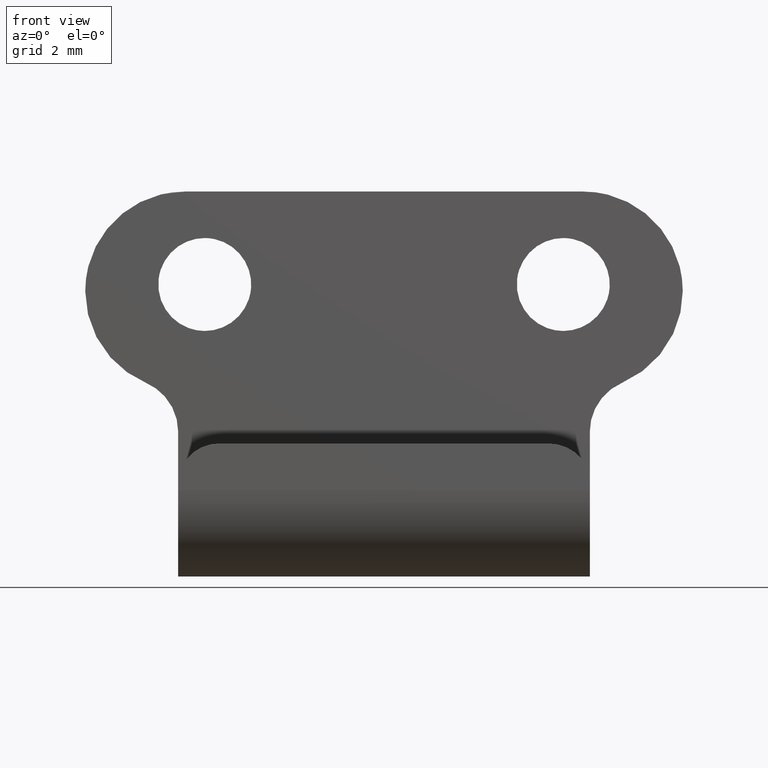
[diagram: clean part render]
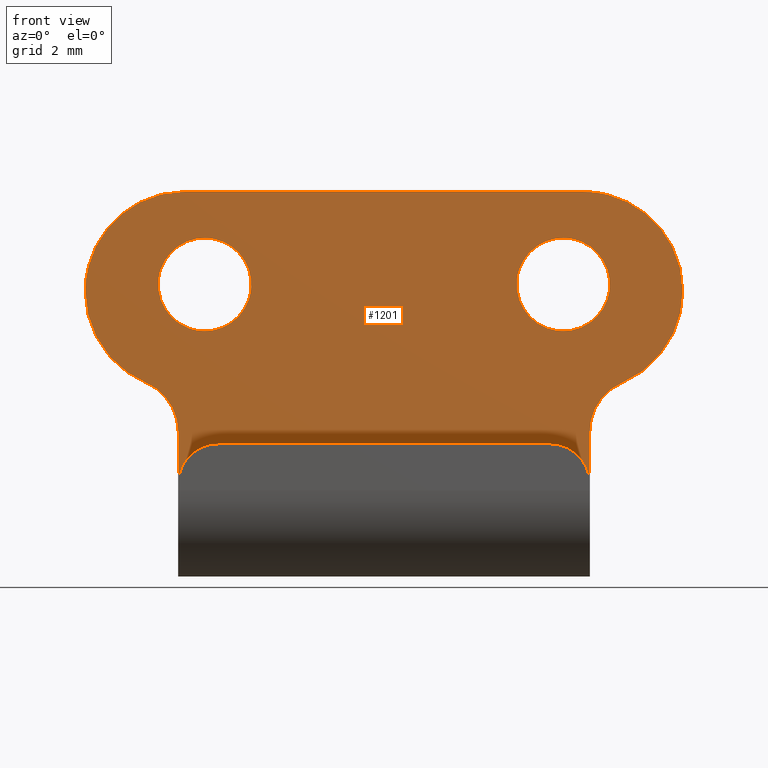
[diagram: same view with one face highlighted and labeled with its STEP entity id]
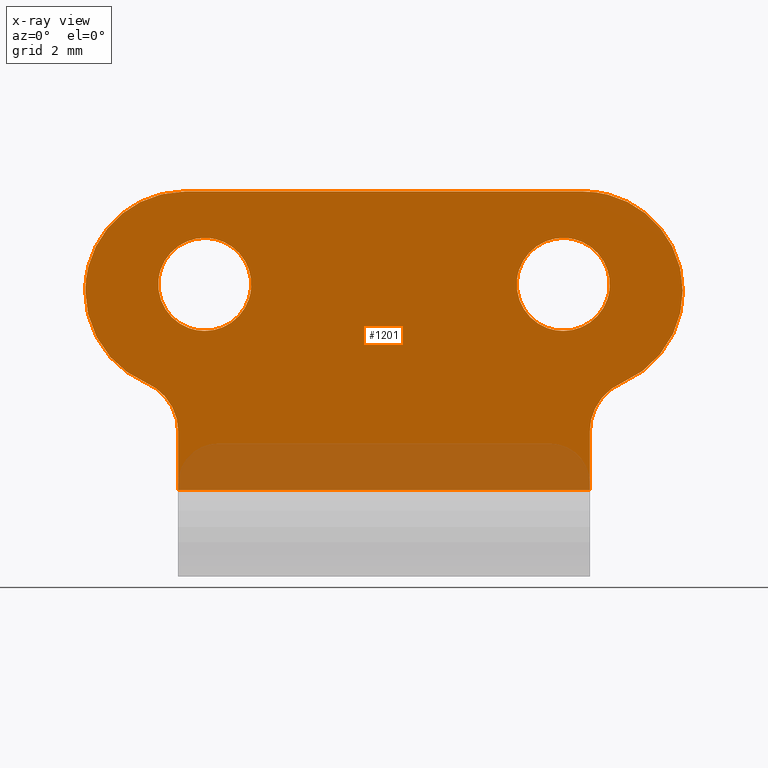
[diagram: x-ray of the same camera — body ghosted, the highlighted face saturated]
A machine part, front view. The second image highlights one B-rep face of the part: STEP entity #1201.
The next image is the same camera in x-ray: the body ghosted, the highlighted face saturated — about 13% of this face is hidden behind the body in this view.
In plain terms, the highlighted face is a freeform B-spline surface patch.
Its self-contained STEP definition (entity closure, byte-faithful):
#85=CARTESIAN_POINT('',(-8.487766671132423,-1.0,-3.293440089317080));
#86=VERTEX_POINT('',#85);
#92=CARTESIAN_POINT('',(-6.750000000000000,-1.0,-5.250000000000000));
#93=VERTEX_POINT('',#92);
#94=CARTESIAN_POINT('',(-8.487766671132423,-1.0,-3.293440089317080));
#95=CARTESIAN_POINT('',(-8.500000000000002,-1.0,-3.396357790575210));
#96=CARTESIAN_POINT('',(-8.500000000000000,-1.0,-3.500000000000000));
#97=CARTESIAN_POINT('',(-8.500000000000000,-1.0,-5.249999999999999));
#98=CARTESIAN_POINT('',(-6.750000000000000,-1.0,-5.250000000000000));
#106=(BOUNDED_CURVE()B_SPLINE_CURVE(2,(#94,#95,#96,#97,#98),.UNSPECIFIED.,.F.,.U.)B_SPLINE_CURVE_WITH_KNOTS((3,2,3),(0.229562473509110,0.250000000000000,0.500000000000000),.UNSPECIFIED.)CURVE()GEOMETRIC_REPRESENTATION_ITEM()RATIONAL_B_SPLINE_CURVE((0.956026754175079,0.976055948325992,1.0,0.707106781186547,1.0))REPRESENTATION_ITEM(''));
#107=EDGE_CURVE('',#86,#93,#106,.T.);
#109=CARTESIAN_POINT('',(-5.003264102764145,-1.0,-3.606834944225449));
#110=VERTEX_POINT('',#109);
#111=CARTESIAN_POINT('',(-6.750000000000000,-1.0,-5.250000000000000));
#112=CARTESIAN_POINT('',(-5.103764382989522,-1.0,-5.250000000000000));
#113=CARTESIAN_POINT('',(-5.003264102764145,-1.0,-3.606834944225449));
#121=(BOUNDED_CURVE()B_SPLINE_CURVE(2,(#111,#112,#113),.UNSPECIFIED.,.F.,.U.)B_SPLINE_CURVE_WITH_KNOTS((3,3),(0.500000000000000,0.739332962234176),.UNSPECIFIED.)CURVE()GEOMETRIC_REPRESENTATION_ITEM()RATIONAL_B_SPLINE_CURVE((1.0,0.719603993292295,0.976072041656500))REPRESENTATION_ITEM(''));
#122=EDGE_CURVE('',#93,#110,#121,.T.);
#196=CARTESIAN_POINT('',(-6.750000000000000,-1.0,-1.750000000000000));
#197=VERTEX_POINT('',#196);
#198=CARTESIAN_POINT('',(-5.003264102764145,-1.0,-3.606834944225449));
#199=CARTESIAN_POINT('',(-5.0,-1.0,-3.553467335812090));
#200=CARTESIAN_POINT('',(-5.0,-1.0,-3.500000000000000));
#201=CARTESIAN_POINT('',(-4.999999999999999,-1.0,-1.750000000000000));
#202=CARTESIAN_POINT('',(-6.750000000000000,-1.0,-1.750000000000000));
#210=(BOUNDED_CURVE()B_SPLINE_CURVE(2,(#198,#199,#200,#201,#202),.UNSPECIFIED.,.F.,.U.)B_SPLINE_CURVE_WITH_KNOTS((3,2,3),(0.739332962234175,0.750000000000000,1.0),.UNSPECIFIED.)CURVE()GEOMETRIC_REPRESENTATION_ITEM()RATIONAL_B_SPLINE_CURVE((0.976072041656498,0.987502787894251,1.0,0.707106781186547,1.0))REPRESENTATION_ITEM(''));
#211=EDGE_CURVE('',#110,#197,#210,.T.);
#213=CARTESIAN_POINT('',(-6.750000000000000,-1.0,-1.750000000000000));
#214=CARTESIAN_POINT('',(-8.304305420354378,-1.0,-1.749999999999999));
#215=CARTESIAN_POINT('',(-8.487766671132423,-1.0,-3.293440089317081));
#223=(BOUNDED_CURVE()B_SPLINE_CURVE(2,(#213,#214,#215),.UNSPECIFIED.,.F.,.U.)B_SPLINE_CURVE_WITH_KNOTS((3,3),(0.0,0.229562473509110),.UNSPECIFIED.)CURVE()GEOMETRIC_REPRESENTATION_ITEM()RATIONAL_B_SPLINE_CURVE((1.0,0.731050832860555,0.956026754175079))REPRESENTATION_ITEM(''));
#224=EDGE_CURVE('',#197,#86,#223,.T.);
#271=CARTESIAN_POINT('',(5.012233328867577,-1.0,-3.293440089317081));
#272=VERTEX_POINT('',#271);
#278=CARTESIAN_POINT('',(6.750000000000000,-1.0,-5.250000000000000));
#279=VERTEX_POINT('',#278);
#280=CARTESIAN_POINT('',(5.012233328867577,-1.0,-3.293440089317080));
#281=CARTESIAN_POINT('',(5.0,-1.0,-3.396357790575210));
#282=CARTESIAN_POINT('',(5.0,-1.0,-3.500000000000000));
#283=CARTESIAN_POINT('',(4.999999999999999,-1.0,-5.249999999999999));
#284=CARTESIAN_POINT('',(6.750000000000000,-1.0,-5.250000000000000));
#292=(BOUNDED_CURVE()B_SPLINE_CURVE(2,(#280,#281,#282,#283,#284),.UNSPECIFIED.,.F.,.U.)B_SPLINE_CURVE_WITH_KNOTS((3,2,3),(0.229562473509110,0.250000000000000,0.500000000000000),.UNSPECIFIED.)CURVE()GEOMETRIC_REPRESENTATION_ITEM()RATIONAL_B_SPLINE_CURVE((0.956026754175079,0.976055948325993,1.0,0.707106781186547,1.0))REPRESENTATION_ITEM(''));
#293=EDGE_CURVE('',#272,#279,#292,.T.);
#295=CARTESIAN_POINT('',(8.496735897235855,-1.0,-3.606834944225449));
#296=VERTEX_POINT('',#295);
#297=CARTESIAN_POINT('',(6.750000000000000,-1.0,-5.250000000000000));
#298=CARTESIAN_POINT('',(8.396235617010479,-1.0,-5.250000000000000));
#299=CARTESIAN_POINT('',(8.496735897235855,-1.0,-3.606834944225449));
#307=(BOUNDED_CURVE()B_SPLINE_CURVE(2,(#297,#298,#299),.UNSPECIFIED.,.F.,.U.)B_SPLINE_CURVE_WITH_KNOTS((3,3),(0.500000000000000,0.739332962234176),.UNSPECIFIED.)CURVE()GEOMETRIC_REPRESENTATION_ITEM()RATIONAL_B_SPLINE_CURVE((1.0,0.719603993292295,0.976072041656500))REPRESENTATION_ITEM(''));
#308=EDGE_CURVE('',#279,#296,#307,.T.);
#382=CARTESIAN_POINT('',(6.750000000000000,-1.0,-1.750000000000000));
#383=VERTEX_POINT('',#382);
#384=CARTESIAN_POINT('',(8.496735897235855,-1.0,-3.606834944225449));
#385=CARTESIAN_POINT('',(8.499999999999998,-1.0,-3.553467335812090));
#386=CARTESIAN_POINT('',(8.500000000000000,-1.0,-3.500000000000000));
#387=CARTESIAN_POINT('',(8.500000000000000,-1.0,-1.750000000000000));
#388=CARTESIAN_POINT('',(6.750000000000000,-1.0,-1.750000000000000));
#396=(BOUNDED_CURVE()B_SPLINE_CURVE(2,(#384,#385,#386,#387,#388),.UNSPECIFIED.,.F.,.U.)B_SPLINE_CURVE_WITH_KNOTS((3,2,3),(0.739332962234175,0.750000000000000,1.0),.UNSPECIFIED.)CURVE()GEOMETRIC_REPRESENTATION_ITEM()RATIONAL_B_SPLINE_CURVE((0.976072041656498,0.987502787894251,1.0,0.707106781186547,1.0))REPRESENTATION_ITEM(''));
#397=EDGE_CURVE('',#296,#383,#396,.T.);
#399=CARTESIAN_POINT('',(6.750000000000000,-1.0,-1.750000000000000));
#400=CARTESIAN_POINT('',(5.195694579645622,-1.0,-1.749999999999999));
#401=CARTESIAN_POINT('',(5.012233328867578,-1.0,-3.293440089317081));
#409=(BOUNDED_CURVE()B_SPLINE_CURVE(2,(#399,#400,#401),.UNSPECIFIED.,.F.,.U.)B_SPLINE_CURVE_WITH_KNOTS((3,3),(0.0,0.229562473509110),.UNSPECIFIED.)CURVE()GEOMETRIC_REPRESENTATION_ITEM()RATIONAL_B_SPLINE_CURVE((1.0,0.731050832860555,0.956026754175079))REPRESENTATION_ITEM(''));
#410=EDGE_CURVE('',#383,#272,#409,.T.);
#552=CARTESIAN_POINT('',(-7.500000000000000,-1.0,-6.123032E-017));
#553=VERTEX_POINT('',#552);
#554=CARTESIAN_POINT('',(-11.250000000000000,-1.0,-3.750000000000000));
#555=VERTEX_POINT('',#554);
#556=CARTESIAN_POINT('',(-7.500000000000000,-1.0,0.0));
#557=CARTESIAN_POINT('',(-11.250000000000000,-1.0,0.0));
#558=CARTESIAN_POINT('',(-11.250000000000000,-1.0,-3.750000000000000));
#566=(BOUNDED_CURVE()B_SPLINE_CURVE(2,(#556,#557,#558),.UNSPECIFIED.,.F.,.U.)CURVE()GEOMETRIC_REPRESENTATION_ITEM()QUASI_UNIFORM_CURVE()RATIONAL_B_SPLINE_CURVE((1.0,0.707106781186547,1.0))REPRESENTATION_ITEM(''));
#567=EDGE_CURVE('',#553,#555,#566,.T.);
#613=CARTESIAN_POINT('',(11.250000000000000,-1.0,-3.749999999975055));
#614=VERTEX_POINT('',#613);
#615=CARTESIAN_POINT('',(7.500000000000000,-1.0,-6.123032E-017));
#616=VERTEX_POINT('',#615);
#617=CARTESIAN_POINT('',(11.250000000000000,-1.0,-3.749999999975055));
#618=CARTESIAN_POINT('',(11.249999999975055,-1.0,4.336809E-016));
#619=CARTESIAN_POINT('',(7.500000000000000,-1.0,0.0));
#627=(BOUNDED_CURVE()B_SPLINE_CURVE(2,(#617,#618,#619),.UNSPECIFIED.,.F.,.U.)CURVE()GEOMETRIC_REPRESENTATION_ITEM()QUASI_UNIFORM_CURVE()RATIONAL_B_SPLINE_CURVE((1.0,0.707106781188899,1.0))REPRESENTATION_ITEM(''));
#628=EDGE_CURVE('',#614,#616,#627,.T.);
#674=CARTESIAN_POINT('',(-7.750000000000000,-1.0,-9.041000000043569));
#675=VERTEX_POINT('',#674);
#676=CARTESIAN_POINT('',(-8.967394277354440,-1.0,-7.200727395740270));
#677=VERTEX_POINT('',#676);
#678=CARTESIAN_POINT('',(-7.749999999999999,-1.0,-9.041000000043569));
#679=CARTESIAN_POINT('',(-7.750173239561985,-1.0,-7.718307299082320));
#680=CARTESIAN_POINT('',(-8.967394277354440,-1.0,-7.200727395740270));
#688=(BOUNDED_CURVE()B_SPLINE_CURVE(2,(#678,#679,#680),.UNSPECIFIED.,.F.,.U.)CURVE()GEOMETRIC_REPRESENTATION_ITEM()QUASI_UNIFORM_CURVE()RATIONAL_B_SPLINE_CURVE((1.0,0.834094800723826,1.0))REPRESENTATION_ITEM(''));
#689=EDGE_CURVE('',#675,#677,#688,.T.);
#750=CARTESIAN_POINT('',(-11.250000000000000,-1.0,-3.750000000000000));
#751=CARTESIAN_POINT('',(-11.249826756851663,-1.0,-6.230204256976815));
#752=CARTESIAN_POINT('',(-8.967394277354444,-1.0,-7.200727395740274));
#760=(BOUNDED_CURVE()B_SPLINE_CURVE(2,(#750,#751,#752),.UNSPECIFIED.,.F.,.U.)CURVE()GEOMETRIC_REPRESENTATION_ITEM()QUASI_UNIFORM_CURVE()RATIONAL_B_SPLINE_CURVE((1.0,0.834077941535737,1.0))REPRESENTATION_ITEM(''));
#761=EDGE_CURVE('',#555,#677,#760,.T.);
#786=CARTESIAN_POINT('',(-7.750000000000000,-1.000000000000014,-11.250000000000000));
#787=VERTEX_POINT('',#786);
#803=CARTESIAN_POINT('',(-7.750000000000000,-1.0,-9.041000000043569));
#804=CARTESIAN_POINT('',(-7.750000000000000,-1.000000000000014,-11.250000000000000));
#805=QUASI_UNIFORM_CURVE('',1,(#803,#804),.UNSPECIFIED.,.F.,.U.);
#806=EDGE_CURVE('',#675,#787,#805,.T.);
#848=CARTESIAN_POINT('',(8.967395743883390,-1.0,-7.200726772139769));
#849=VERTEX_POINT('',#848);
#850=CARTESIAN_POINT('',(7.750000000000000,-1.0,-9.041000000000111));
#851=VERTEX_POINT('',#850);
#852=CARTESIAN_POINT('',(8.967395743883388,-1.0,-7.200726772139764));
#853=CARTESIAN_POINT('',(7.750176702273852,-1.0,-7.718308444335606));
#854=CARTESIAN_POINT('',(7.749999999999981,-1.0,-9.041000000000111));
#862=(BOUNDED_CURVE()B_SPLINE_CURVE(2,(#852,#853,#854),.UNSPECIFIED.,.F.,.U.)CURVE()GEOMETRIC_REPRESENTATION_ITEM()QUASI_UNIFORM_CURVE()RATIONAL_B_SPLINE_CURVE((1.0,0.834096025116407,1.0))REPRESENTATION_ITEM(''));
#863=EDGE_CURVE('',#849,#851,#862,.T.);
#924=CARTESIAN_POINT('',(8.967395743883388,-1.0,-7.200726772139768));
#925=CARTESIAN_POINT('',(11.249823294099295,-1.0,-6.230200820997472));
#926=CARTESIAN_POINT('',(11.250000000000011,-1.0,-3.749999999975056));
#934=(BOUNDED_CURVE()B_SPLINE_CURVE(2,(#924,#925,#926),.UNSPECIFIED.,.F.,.U.)CURVE()GEOMETRIC_REPRESENTATION_ITEM()QUASI_UNIFORM_CURVE()RATIONAL_B_SPLINE_CURVE((1.0,0.834078828988539,1.0))REPRESENTATION_ITEM(''));
#935=EDGE_CURVE('',#849,#614,#934,.T.);
#983=CARTESIAN_POINT('',(7.750000000000000,-1.000000000000014,-11.250000000000000));
#984=VERTEX_POINT('',#983);
#985=CARTESIAN_POINT('',(7.750000000000000,-1.0,-9.041000000000111));
#986=CARTESIAN_POINT('',(7.750000000000000,-1.000000000000014,-11.250000000000000));
#987=QUASI_UNIFORM_CURVE('',1,(#985,#986),.UNSPECIFIED.,.F.,.U.);
#988=EDGE_CURVE('',#851,#984,#987,.T.);
#1013=CARTESIAN_POINT('',(7.500000000000000,-1.0,-6.123032E-017));
#1014=CARTESIAN_POINT('',(-7.500000000000000,-1.0,-6.123032E-017));
#1015=QUASI_UNIFORM_CURVE('',1,(#1013,#1014),.UNSPECIFIED.,.F.,.U.);
#1016=EDGE_CURVE('',#616,#553,#1015,.T.);
#1131=CARTESIAN_POINT('',(7.750000000000000,-1.000000000000014,-11.250000000000000));
#1132=CARTESIAN_POINT('',(-7.750000000000000,-1.000000000000014,-11.250000000000000));
#1133=QUASI_UNIFORM_CURVE('',1,(#1131,#1132),.UNSPECIFIED.,.F.,.U.);
#1134=EDGE_CURVE('',#984,#787,#1133,.T.);
#1172=CARTESIAN_POINT('',(-12.373874956390630,-1.0,0.561937478195317));
#1173=CARTESIAN_POINT('',(-12.373874956390630,-1.0,-11.811937779943831));
#1174=CARTESIAN_POINT('',(12.373875559887660,-1.0,0.561937478195317));
#1175=CARTESIAN_POINT('',(12.373875559887660,-1.0,-11.811937779943831));
#1176=B_SPLINE_SURFACE_WITH_KNOTS('',1,1,((#1172,#1174),(#1173,#1175)),.UNSPECIFIED.,.F.,.F.,.U.,(2,2),(2,2),(0.0,12.373875258139149),(0.0,24.747750516278298),.UNSPECIFIED.);
#1177=ORIENTED_EDGE('',*,*,#935,.T.);
#1178=ORIENTED_EDGE('',*,*,#628,.T.);
#1179=ORIENTED_EDGE('',*,*,#1016,.T.);
#1180=ORIENTED_EDGE('',*,*,#567,.T.);
#1181=ORIENTED_EDGE('',*,*,#761,.T.);
#1182=ORIENTED_EDGE('',*,*,#689,.F.);
#1183=ORIENTED_EDGE('',*,*,#806,.T.);
#1184=ORIENTED_EDGE('',*,*,#1134,.F.);
#1185=ORIENTED_EDGE('',*,*,#988,.F.);
#1186=ORIENTED_EDGE('',*,*,#863,.F.);
#1187=EDGE_LOOP('',(#1177,#1178,#1179,#1180,#1181,#1182,#1183,#1184,#1185,#1186));
#1188=FACE_OUTER_BOUND('',#1187,.T.);
#1189=ORIENTED_EDGE('',*,*,#308,.F.);
#1190=ORIENTED_EDGE('',*,*,#293,.F.);
#1191=ORIENTED_EDGE('',*,*,#410,.F.);
#1192=ORIENTED_EDGE('',*,*,#397,.F.);
#1193=EDGE_LOOP('',(#1189,#1190,#1191,#1192));
#1194=FACE_BOUND('',#1193,.T.);
#1195=ORIENTED_EDGE('',*,*,#122,.F.);
#1196=ORIENTED_EDGE('',*,*,#107,.F.);
#1197=ORIENTED_EDGE('',*,*,#224,.F.);
#1198=ORIENTED_EDGE('',*,*,#211,.F.);
#1199=EDGE_LOOP('',(#1195,#1196,#1197,#1198));
#1200=FACE_BOUND('',#1199,.T.);
#1201=ADVANCED_FACE('',(#1188,#1194,#1200),#1176,.T.);